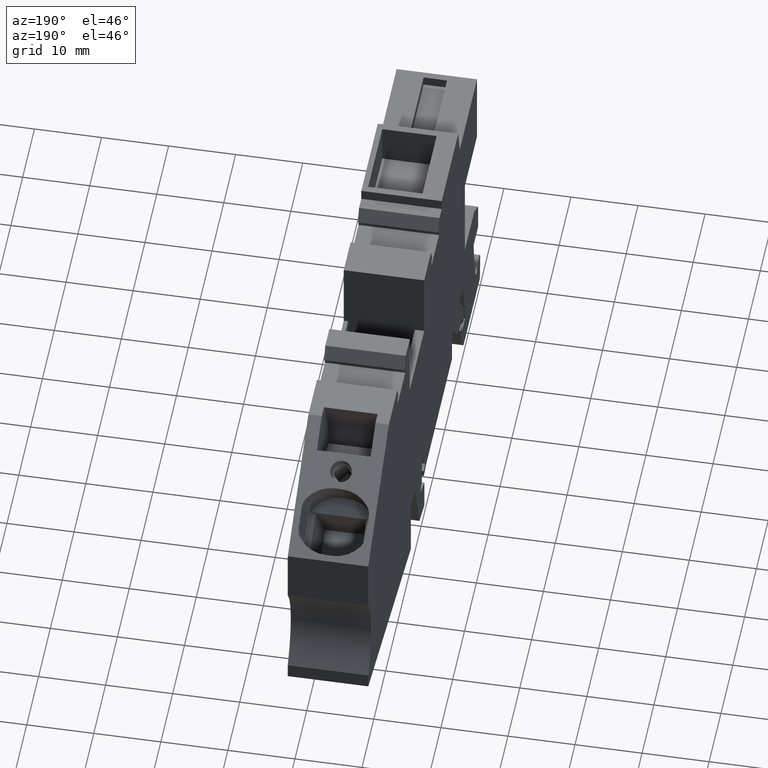
[diagram: clean part render]
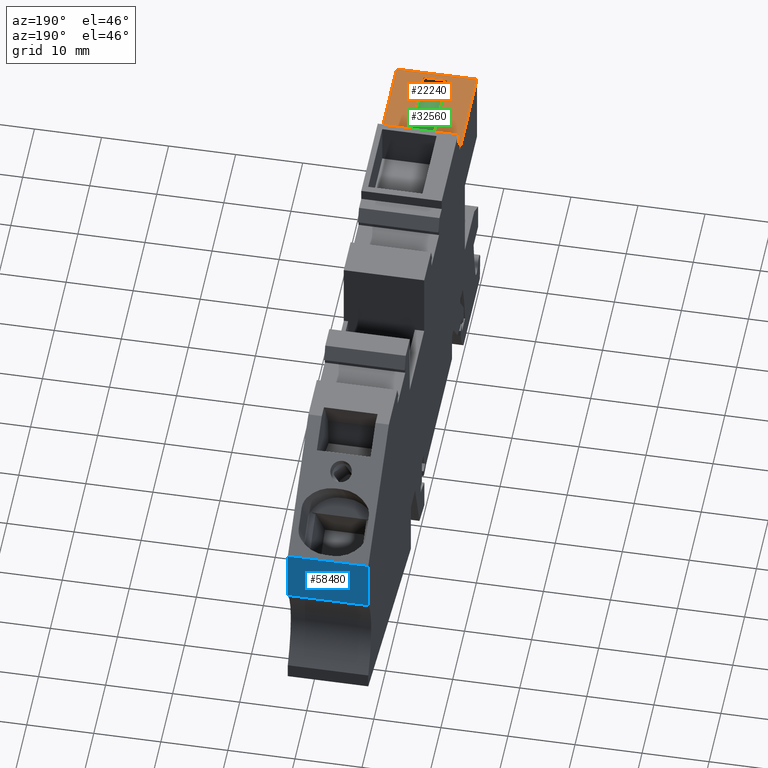
[diagram: same view with three faces highlighted in distinct colors, each labeled with its STEP entity id]
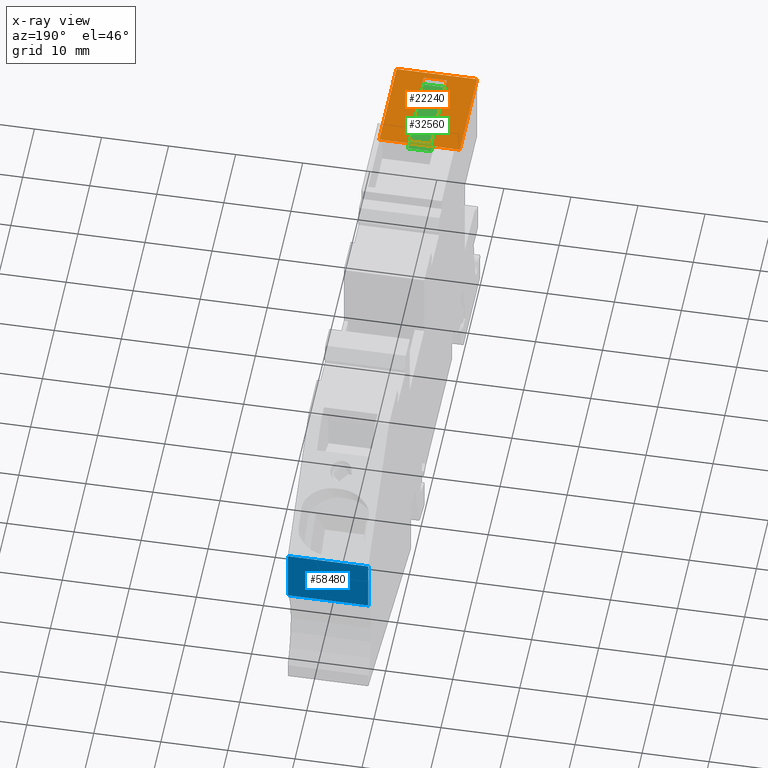
[diagram: x-ray of the same camera — body ghosted, the three highlighted faces saturated]
A machine part, auxiliary view with three faces highlighted in distinct colors.
The next image is the same camera in x-ray (body ghosted, the three faces saturated) — at least one of them is partly hidden behind the body in this view.
Their STEP definitions:

[orange] entity #22240 — the highlighted planar face has unit normal (0, -0, 1).
#3170=CARTESIAN_POINT('',(15.6473600067015,37.3532885000009,20.25));
#3180=VERTEX_POINT('',#3170);
#3210=CARTESIAN_POINT('',(58.1696952865842,37.3532885000051,20.25));
#3220=DIRECTION('',(1.,1.01415383177819E-13,0.));
#3230=VECTOR('',#3220,1.);
#3240=LINE('',#3210,#3230);
#3250=CARTESIAN_POINT('',(1.034610500001,37.3532884999994,20.25));
#3260=VERTEX_POINT('',#3250);
#3270=EDGE_CURVE('',#3260,#3180,#3240,.T.);
#10310=CARTESIAN_POINT('',(1.034610500001,37.3532884999994,
32.2500000042363));
#10320=VERTEX_POINT('',#10310);
#10350=CARTESIAN_POINT('',(58.1696952865842,37.3532885000051,
32.2500000042363));
#10360=DIRECTION('',(1.,1.01415383177819E-13,0.));
#10370=VECTOR('',#10360,1.);
#10380=LINE('',#10350,#10370);
#10390=CARTESIAN_POINT('',(15.6473600067015,37.3532885000009,
32.2500000042363));
#10400=VERTEX_POINT('',#10390);
#10410=EDGE_CURVE('',#10320,#10400,#10380,.T.);
#21280=CARTESIAN_POINT('',(15.6473600067015,37.3532885000008,20.25));
#21290=DIRECTION('',(0.,0.,-1.));
#21300=VECTOR('',#21290,1.);
#21310=LINE('',#21280,#21300);
#21320=EDGE_CURVE('',#10400,#3180,#21310,.T.);
#21740=CARTESIAN_POINT('',(1.53461050000091,37.3532884999994,20.25));
#21750=DIRECTION('',(-1.01415383177819E-13,1.,0.));
#21760=DIRECTION('',(1.,1.01415383177819E-13,0.));
#21770=AXIS2_PLACEMENT_3D('',#21740,#21750,#21760);
#21780=PLANE('',#21770);
#21790=CARTESIAN_POINT('',(15.2666416733427,37.3532885000008,20.25));
#21800=DIRECTION('',(8.20475478059742E-18,8.32001735975286E-31,1.));
#21810=VECTOR('',#21800,1.);
#21820=LINE('',#21790,#21810);
#21830=CARTESIAN_POINT('',(15.2666416733427,37.3532885000008,
24.5500000346694));
#21840=VERTEX_POINT('',#21830);
#21850=CARTESIAN_POINT('',(15.2666416733427,37.3532885000008,
28.0500000346694));
#21860=VERTEX_POINT('',#21850);
#21870=EDGE_CURVE('',#21840,#21860,#21820,.T.);
#21880=ORIENTED_EDGE('',*,*,#21870,.T.);
#21890=CARTESIAN_POINT('',(58.1696952865842,37.3532885000051,
24.5500000346694));
#21900=DIRECTION('',(1.,1.01415383177819E-13,-8.20475478058026E-18));
#21910=VECTOR('',#21900,1.);
#21920=LINE('',#21890,#21910);
#21930=CARTESIAN_POINT('',(2.03436841334273,37.3532884999995,
24.5500000346694));
#21940=VERTEX_POINT('',#21930);
#21950=EDGE_CURVE('',#21940,#21840,#21920,.T.);
#21960=ORIENTED_EDGE('',*,*,#21950,.T.);
#21970=CARTESIAN_POINT('',(2.03436841334273,37.3532884999995,20.25));
#21980=DIRECTION('',(-8.20475478059742E-18,-8.32001735975286E-31,-1.));
#21990=VECTOR('',#21980,1.);
#22000=LINE('',#21970,#21990);
#22010=CARTESIAN_POINT('',(2.03436841334273,37.3532884999995,
28.0500000346695));
#22020=VERTEX_POINT('',#22010);
#22030=EDGE_CURVE('',#22020,#21940,#22000,.T.);
#22040=ORIENTED_EDGE('',*,*,#22030,.T.);
#22050=CARTESIAN_POINT('',(58.1696952865842,37.3532885000051,
28.0500000346694));
#22060=DIRECTION('',(-1.,-1.01415383177819E-13,8.20475478058026E-18));
#22070=VECTOR('',#22060,1.);
#22080=LINE('',#22050,#22070);
#22090=EDGE_CURVE('',#21860,#22020,#22080,.T.);
#22100=ORIENTED_EDGE('',*,*,#22090,.T.);
#22110=EDGE_LOOP('',(#22100,#22040,#21960,#21880));
#22120=FACE_BOUND('',#22110,.T.);
#22130=ORIENTED_EDGE('',*,*,#3270,.F.);
#22140=ORIENTED_EDGE('',*,*,#21320,.T.);
#22150=ORIENTED_EDGE('',*,*,#10410,.T.);
#22160=CARTESIAN_POINT('',(1.034610500001,37.3532884999994,20.25));
#22170=DIRECTION('',(0.,0.,-1.));
#22180=VECTOR('',#22170,1.);
#22190=LINE('',#22160,#22180);
#22200=EDGE_CURVE('',#10320,#3260,#22190,.T.);
#22210=ORIENTED_EDGE('',*,*,#22200,.F.);
#22220=EDGE_LOOP('',(#22210,#22150,#22140,#22130));
#22230=FACE_OUTER_BOUND('',#22220,.T.);
#22240=ADVANCED_FACE('',(#22120,#22230),#21780,.T.);

[blue] entity #58480 — the highlighted planar face has unit normal (0, 1, -0).
#1090=CARTESIAN_POINT('',(93.0346104999997,19.9210063554791,20.25));
#1100=VERTEX_POINT('',#1090);
#1130=CARTESIAN_POINT('',(93.0346104999994,10.1872776855936,20.25));
#1140=DIRECTION('',(-3.07537267123128E-14,-1.,0.));
#1150=VECTOR('',#1140,1.);
#1160=LINE('',#1130,#1150);
#1170=CARTESIAN_POINT('',(93.0346105,28.1717670495063,20.25));
#1180=VERTEX_POINT('',#1170);
#1190=EDGE_CURVE('',#1180,#1100,#1160,.T.);
#12390=CARTESIAN_POINT('',(93.0346105,28.1717670495063,32.2500000042363)
);
#12400=VERTEX_POINT('',#12390);
#12430=CARTESIAN_POINT('',(93.0346104999994,10.1872776855936,
32.2500000042363));
#12440=DIRECTION('',(-3.07537267123128E-14,-1.,0.));
#12450=VECTOR('',#12440,1.);
#12460=LINE('',#12430,#12450);
#12470=CARTESIAN_POINT('',(93.0346104999997,19.9210063554791,
32.2500000042363));
#12480=VERTEX_POINT('',#12470);
#12490=EDGE_CURVE('',#12400,#12480,#12460,.T.);
#57450=CARTESIAN_POINT('',(93.0346104999997,19.9210063554791,20.25));
#57460=DIRECTION('',(0.,0.,-1.));
#57470=VECTOR('',#57460,1.);
#57480=LINE('',#57450,#57470);
#57490=EDGE_CURVE('',#12480,#1100,#57480,.T.);
#58320=CARTESIAN_POINT('',(93.0346105,27.6512,20.25));
#58330=DIRECTION('',(1.,-3.07537267123128E-14,0.));
#58340=DIRECTION('',(-3.07537267123128E-14,-1.,0.));
#58350=AXIS2_PLACEMENT_3D('',#58320,#58330,#58340);
#58360=PLANE('',#58350);
#58370=ORIENTED_EDGE('',*,*,#1190,.F.);
#58380=ORIENTED_EDGE('',*,*,#57490,.T.);
#58390=ORIENTED_EDGE('',*,*,#12490,.T.);
#58400=CARTESIAN_POINT('',(93.0346105,28.1717670495063,20.25));
#58410=DIRECTION('',(0.,0.,-1.));
#58420=VECTOR('',#58410,1.);
#58430=LINE('',#58400,#58420);
#58440=EDGE_CURVE('',#12400,#1180,#58430,.T.);
#58450=ORIENTED_EDGE('',*,*,#58440,.F.);
#58460=EDGE_LOOP('',(#58450,#58390,#58380,#58370));
#58470=FACE_OUTER_BOUND('',#58460,.T.);
#58480=ADVANCED_FACE('',(#58470),#58360,.T.);

[green] entity #32560 — the highlighted planar face has unit normal (0, -0, 1).
#30340=CARTESIAN_POINT('',(2.03436841334274,35.8569576950159,
28.0500000346695));
#30350=VERTEX_POINT('',#30340);
#30380=CARTESIAN_POINT('',(36.2343684133427,35.856957695016,
28.0500000346695));
#30390=DIRECTION('',(1.,2.17881268582687E-15,-8.20475478059742E-18));
#30400=VECTOR('',#30390,1.);
#30410=LINE('',#30380,#30400);
#30420=CARTESIAN_POINT('',(15.2666416733427,35.856957695016,
28.0500000346695));
#30430=VERTEX_POINT('',#30420);
#30440=EDGE_CURVE('',#30350,#30430,#30410,.T.);
#30930=CARTESIAN_POINT('',(15.2666416733427,35.856957695016,
27.9992318246695));
#30940=DIRECTION('',(-8.20475478059772E-18,1.38175680420644E-16,-1.));
#30950=VECTOR('',#30940,1.);
#30960=LINE('',#30930,#30950);
#30970=CARTESIAN_POINT('',(15.2666416733427,35.856957695016,
24.5500000346694));
#30980=VERTEX_POINT('',#30970);
#30990=EDGE_CURVE('',#30430,#30980,#30960,.T.);
#31480=CARTESIAN_POINT('',(36.2343684133427,35.856957695016,
24.5500000346694));
#31490=DIRECTION('',(-1.,-2.17881268582687E-15,8.20475478059742E-18));
#31500=VECTOR('',#31490,1.);
#31510=LINE('',#31480,#31500);
#31520=CARTESIAN_POINT('',(2.03436841334274,35.8569576950159,
24.5500000346694));
#31530=VERTEX_POINT('',#31520);
#31540=EDGE_CURVE('',#30980,#31530,#31510,.T.);
#32030=CARTESIAN_POINT('',(2.03436841334274,35.8569576950159,
20.2500000346694));
#32040=DIRECTION('',(-8.20475478059772E-18,1.38175680420644E-16,-1.));
#32050=VECTOR('',#32040,1.);
#32060=LINE('',#32030,#32050);
#32070=EDGE_CURVE('',#30350,#31530,#32060,.T.);
#32450=CARTESIAN_POINT('',(8.40050504337349,35.8569576950159,
30.1500000194529));
#32460=DIRECTION('',(-2.17881268582687E-15,1.,1.38175680420644E-16));
#32470=DIRECTION('',(1.,2.17881268582687E-15,-8.20475478059742E-18));
#32480=AXIS2_PLACEMENT_3D('',#32450,#32460,#32470);
#32490=PLANE('',#32480);
#32500=ORIENTED_EDGE('',*,*,#32070,.F.);
#32510=ORIENTED_EDGE('',*,*,#31540,.T.);
#32520=ORIENTED_EDGE('',*,*,#30990,.T.);
#32530=ORIENTED_EDGE('',*,*,#30440,.T.);
#32540=EDGE_LOOP('',(#32530,#32520,#32510,#32500));
#32550=FACE_OUTER_BOUND('',#32540,.T.);
#32560=ADVANCED_FACE('',(#32550),#32490,.T.);